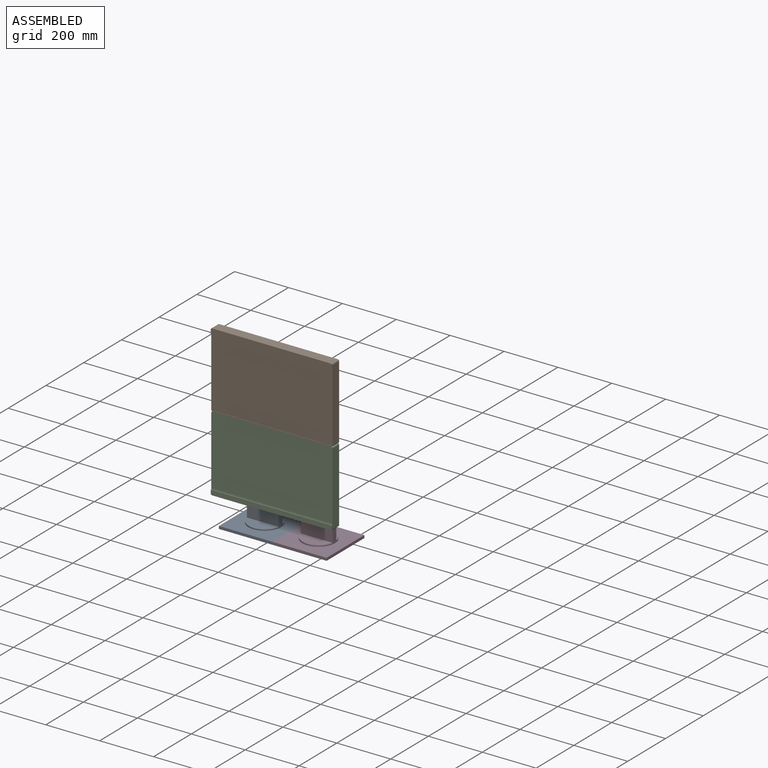
[diagram: assembled view]
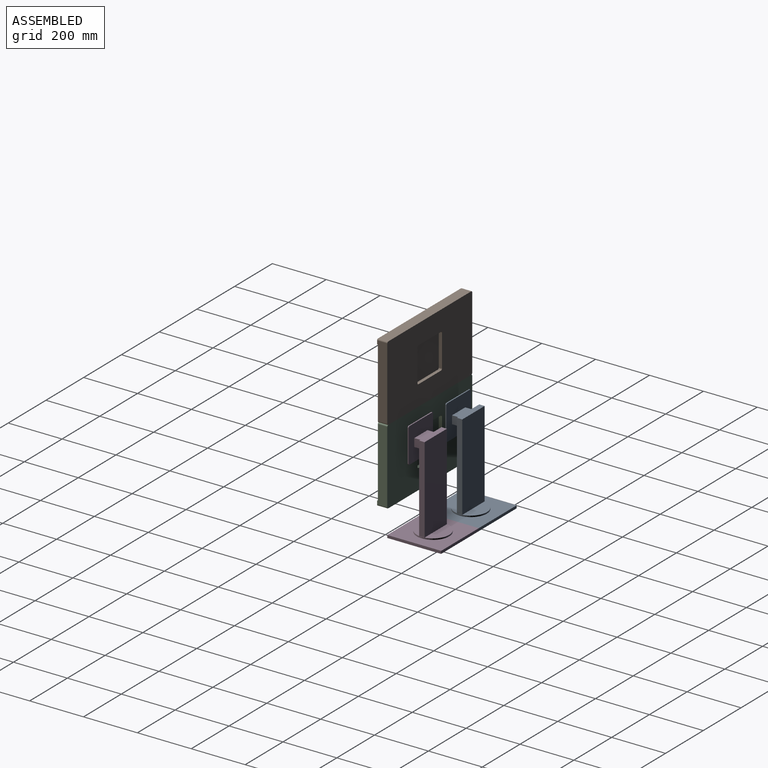
[diagram: assembled view, second angle]
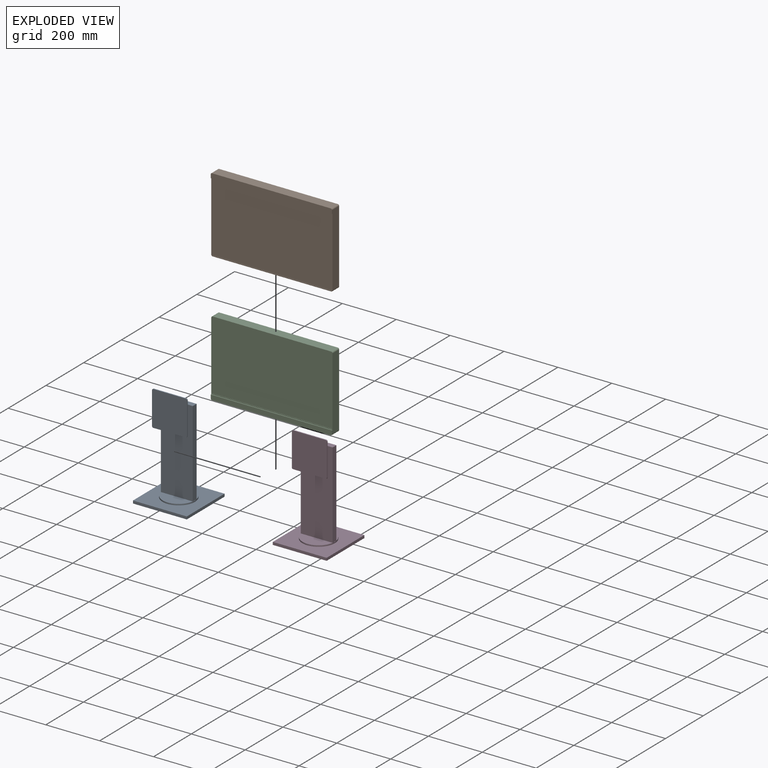
[diagram: exploded view]
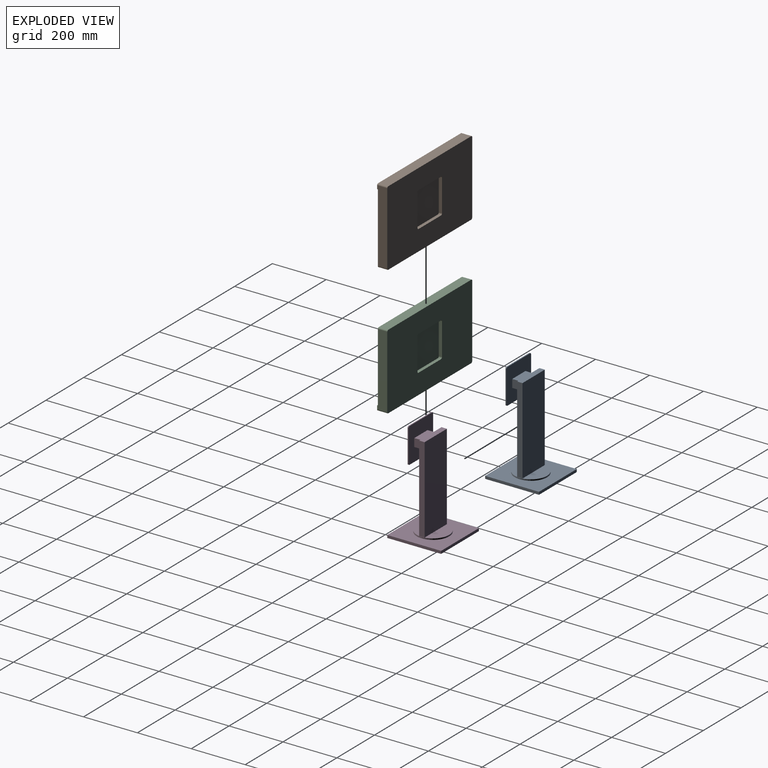
[diagram: exploded view, second angle]
ASSEMBLY  parts=4 mates=2
PART A: 30 faces, bbox 200x200x375 mm
  f0: plane 320x118.32mm, normal (0,-1,0), area 35762.9mm2, adj f1,f12,f14,f15,f16,f17,f18,f19
  f1: plane 118.32x50mm, normal (0,0,1), area 4460.4mm2, adj f0,f10
  f2: plane 20x0.84mm, normal (0,0,1), area 11.2mm2, adj f10,f14
  f3: plane 20x0.84mm, normal (0,0,1), area 11.2mm2, adj f10,f12
  f4: plane 200x10mm, normal (0,1,0), area 2000mm2, adj f5,f7,f8,f9
  f5: plane 200x10mm, normal (-1,0,0), area 2000mm2, adj f4,f6,f8,f9
  f6: plane 200x10mm, normal (0,-1,0), area 2000mm2, adj f5,f7,f8,f9
  f7: plane 200x10mm, normal (1,0,0), area 2000mm2, adj f4,f6,f8,f9
  f8: plane 200x200mm, normal (0,0,1), area 28690.3mm2, adj f4,f5,f6,f7,f10
  f9: plane 200x200mm, normal (0,0,-1), area 40000mm2, adj f4,f5,f6,f7
  f10: cylinder r=60mm len=120mm, axis (0,0,-1), area 1885mm2, adj f1,f2,f3,f8,f11
  f11: plane 118.32x50mm, normal (0,0,1), area 4460.4mm2, adj f10,f13
  f12: plane 320x20mm, normal (1,0,0), area 6400mm2, adj f0,f3,f13,f15
  f13: plane 320x118.32mm, normal (0,1,0), area 37862.9mm2, adj f11,f12,f14,f15
  f14: plane 320x20mm, normal (-1,0,0), area 6400mm2, adj f0,f2,f13,f15
  f15: plane 118.32x20mm, normal (0,0,1), area 2366.4mm2, adj f0,f12,f13,f14
  f16: plane 35x30mm, normal (-1,0,0), area 1050mm2, adj f0,f17,f19,f20
  f17: plane 70x35mm, normal (0,0,-1), area 2450mm2, adj f0,f16,f18,f20
  f18: plane 35x30mm, normal (1,0,0), area 1050mm2, adj f0,f17,f19,f20
  f19: plane 70x35mm, normal (0,0,1), area 2450mm2, adj f0,f16,f18,f20
  f20: plane 130x130mm, normal (0,1,0), area 14778.5mm2, adj f16,f17,f18,f19,f21,f22,f23,f24
  f21: cylinder r=5mm len=5mm, axis (0,1,0), area 31.4mm2, adj f20,f22,f28,f29
  f22: plane 120x4mm, normal (0,0,1), area 480mm2, adj f20,f21,f23,f29
  f23: cylinder r=5mm len=5mm, axis (0,1,0), area 31.4mm2, adj f20,f22,f24,f29
  f24: plane 120x4mm, normal (-1,0,0), area 480mm2, adj f20,f23,f25,f29
  f25: cylinder r=5mm len=5mm, axis (0,1,0), area 31.4mm2, adj f20,f24,f26,f29
  f26: plane 120x4mm, normal (0,0,-1), area 480mm2, adj f20,f25,f27,f29
  f27: cylinder r=5mm len=5mm, axis (0,1,0), area 31.4mm2, adj f20,f26,f28,f29
  f28: plane 120x4mm, normal (1,0,0), area 480mm2, adj f20,f21,f27,f29
  f29: plane 130x130mm, normal (0,-1,0), area 16878.5mm2, adj f21,f22,f23,f24,f25,f26,f27,f28
PART B: 26 faces, bbox 450x38x280 mm
  f0: plane 450x262mm, normal (0,-1,0), area 4225.3mm2, adj f2,f3,f4,f8,f9,f19,f21,f22
  f1: plane 450x280mm, normal (0,1,0), area 109100mm2, adj f2,f3,f4,f5,f6,f7,f8,f9
  f2: plane 440x35mm, normal (0,0,1), area 15400mm2, adj f0,f1,f3,f9
  f3: cylinder r=5mm len=35mm, axis (0,1,0), area 274.9mm2, adj f0,f1,f2,f4
  f4: plane 270x38mm, normal (-1,0,0), area 9489mm2, adj f0,f1,f3,f5,f19,f20
  f5: cylinder r=5mm len=38mm, axis (0,1,0), area 298.5mm2, adj f1,f4,f6,f20
  f6: plane 440x38mm, normal (0,0,-1), area 16720mm2, adj f1,f5,f7,f20
  f7: cylinder r=5mm len=38mm, axis (0,1,0), area 298.5mm2, adj f1,f6,f8,f20
  f8: plane 270x38mm, normal (1,0,0), area 9489mm2, adj f0,f1,f7,f9,f19,f20
  f9: cylinder r=5mm len=35mm, axis (0,1,0), area 274.9mm2, adj f0,f1,f2,f8
  f10: cylinder r=5mm len=12mm, axis (0,1,0), area 94.2mm2, adj f1,f11,f17,f18
  f11: plane 120x12mm, normal (0,0,-1), area 1440mm2, adj f1,f10,f12,f18
  f12: cylinder r=5mm len=12mm, axis (0,1,0), area 94.2mm2, adj f1,f11,f13,f18
  f13: plane 120x12mm, normal (1,0,0), area 1440mm2, adj f1,f12,f14,f18
  f14: cylinder r=5mm len=12mm, axis (0,1,0), area 94.2mm2, adj f1,f13,f15,f18
  f15: plane 120x12mm, normal (0,0,1), area 1440mm2, adj f1,f14,f16,f18
  f16: cylinder r=5mm len=12mm, axis (0,1,0), area 94.2mm2, adj f1,f15,f17,f18
  f17: plane 120x12mm, normal (-1,0,0), area 1440mm2, adj f1,f10,f16,f18
  f18: plane 130x130mm, normal (0,1,0), area 16878.5mm2, adj f10,f11,f12,f13,f14,f15,f16,f17
  f19: plane 450x3mm, normal (0,0,1), area 1350mm2, adj f0,f4,f8,f20
  f20: plane 450x18mm, normal (0,-1,0), area 8089.3mm2, adj f4,f5,f6,f7,f8,f19
  f21: plane 444x1mm, normal (0,0,1), area 444mm2, adj f0,f22,f24,f25
  f22: plane 256x1mm, normal (-1,0,0), area 256mm2, adj f0,f21,f23,f25
  f23: plane 444x1mm, normal (0,0,-1), area 444mm2, adj f0,f22,f24,f25
  f24: plane 256x1mm, normal (1,0,0), area 256mm2, adj f0,f21,f23,f25
  f25: plane 444x256mm, normal (0,-1,0), area 113664mm2, adj f21,f22,f23,f24
PART C: same geometry as B
PART D: same geometry as A
PLACE A t=(-661.51,133.95,-76.41)mm
PLACE B rot(axis=(0,-1,0),180deg) t=(-555.67,104.86,768.94)mm
PLACE C rot(axis=(1,0,0),0deg) t=(-555.67,104.86,-131.75)mm
PLACE D t=(-461.51,133.95,-76.41)mm
MATE fastened B.f2 <-> C.f2  axis (0,0,-1) through (-555.67,38.36,318.6)mm
MATE fastened D.f5 <-> A.f7  axis (-1,0,0) through (-561.51,133.95,-71.41)mm
